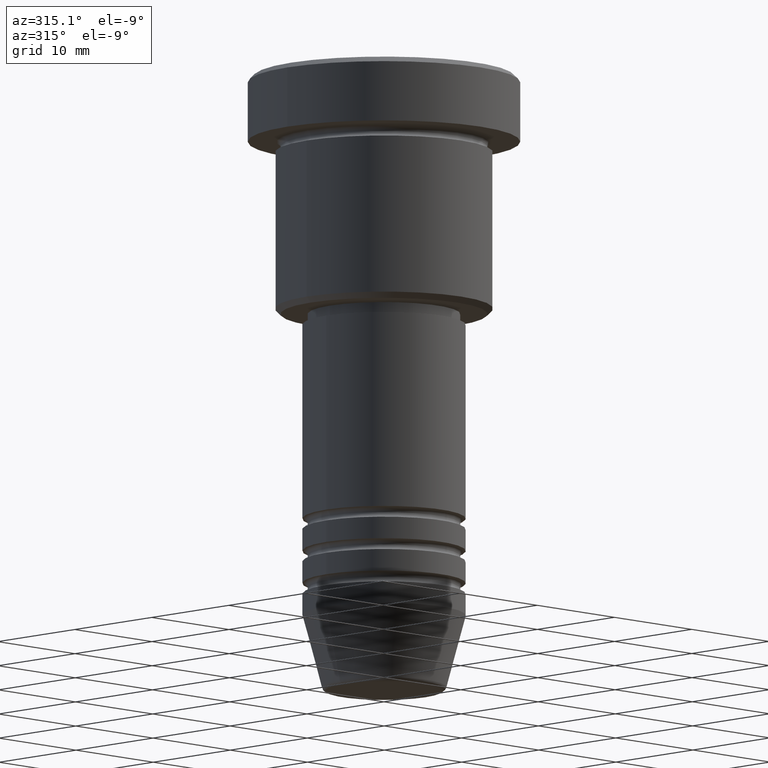
[diagram: clean part render]
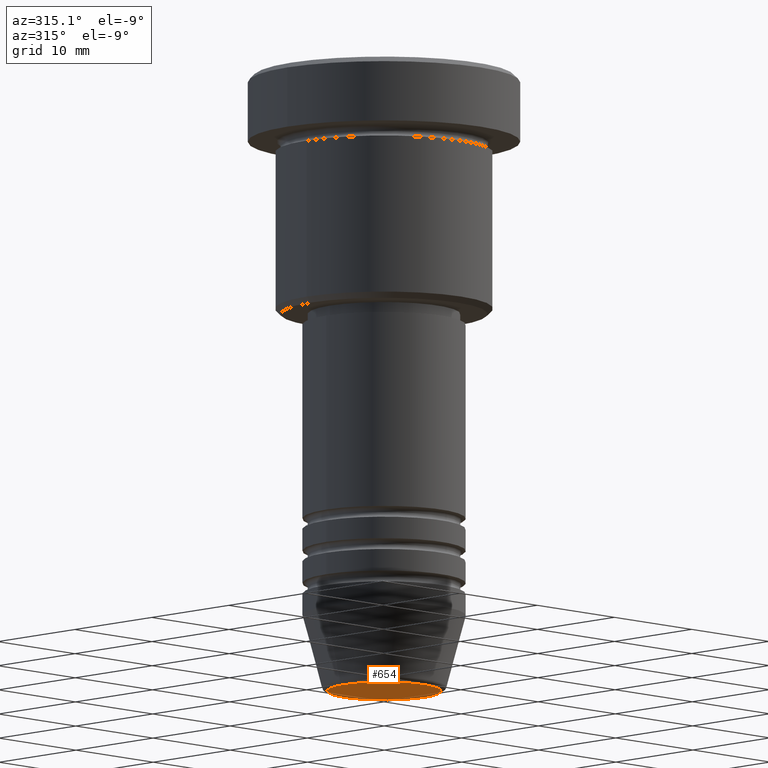
[diagram: same view with one face highlighted and labeled with its STEP entity id]
A machine part, auxiliary view. The second image highlights one B-rep face of the part: STEP entity #654.
In plain terms, the highlighted planar face has unit normal (0, -0, 1).
Its self-contained STEP definition (entity closure, byte-faithful):
#49 = EDGE_CURVE ( 'NONE', #379, #321, #221, .T. ) ;
#58 = CARTESIAN_POINT ( 'NONE',  ( -5.240692158992656502, 6.713726370671656487E-16, -57.00000000000000000 ) ) ;
#221 = CIRCLE ( 'NONE', #553, 5.240692158992656502 ) ;
#321 = VERTEX_POINT ( 'NONE', #432 ) ;
#326 = CIRCLE ( 'NONE', #447, 5.240692158992656502 ) ;
#359 = DIRECTION ( 'NONE',  ( 0.000000000000000000, -0.000000000000000000, 1.000000000000000000 ) ) ;
#379 = VERTEX_POINT ( 'NONE', #58 ) ;
#425 = PLANE ( 'NONE',  #952 ) ;
#432 = CARTESIAN_POINT ( 'NONE',  ( 5.240692158992656502, 0.000000000000000000, -57.00000000000000000 ) ) ;
#447 = AXIS2_PLACEMENT_3D ( 'NONE', #479, #871, #939 ) ;
#479 = CARTESIAN_POINT ( 'NONE',  ( 0.000000000000000000, 0.000000000000000000, -57.00000000000000000 ) ) ;
#553 = AXIS2_PLACEMENT_3D ( 'NONE', #825, #1100, #1180 ) ;
#614 = CARTESIAN_POINT ( 'NONE',  ( 0.000000000000000000, 0.000000000000000000, -57.00000000000000000 ) ) ;
#631 = DIRECTION ( 'NONE',  ( 1.000000000000000000, 0.000000000000000000, 0.000000000000000000 ) ) ;
#653 = ORIENTED_EDGE ( 'NONE', *, *, #49, .T. ) ;
#654 = ADVANCED_FACE ( 'NONE', ( #728 ), #425, .F. ) ;
#728 = FACE_OUTER_BOUND ( 'NONE', #746, .T. ) ;
#746 = EDGE_LOOP ( 'NONE', ( #850, #653 ) ) ;
#825 = CARTESIAN_POINT ( 'NONE',  ( 0.000000000000000000, 0.000000000000000000, -57.00000000000000000 ) ) ;
#850 = ORIENTED_EDGE ( 'NONE', *, *, #1105, .T. ) ;
#871 = DIRECTION ( 'NONE',  ( 0.000000000000000000, 0.000000000000000000, -1.000000000000000000 ) ) ;
#939 = DIRECTION ( 'NONE',  ( 1.000000000000000000, 0.000000000000000000, 0.000000000000000000 ) ) ;
#952 = AXIS2_PLACEMENT_3D ( 'NONE', #614, #359, #631 ) ;
#1100 = DIRECTION ( 'NONE',  ( 0.000000000000000000, 0.000000000000000000, -1.000000000000000000 ) ) ;
#1105 = EDGE_CURVE ( 'NONE', #321, #379, #326, .T. ) ;
#1180 = DIRECTION ( 'NONE',  ( 1.000000000000000000, 0.000000000000000000, 0.000000000000000000 ) ) ;